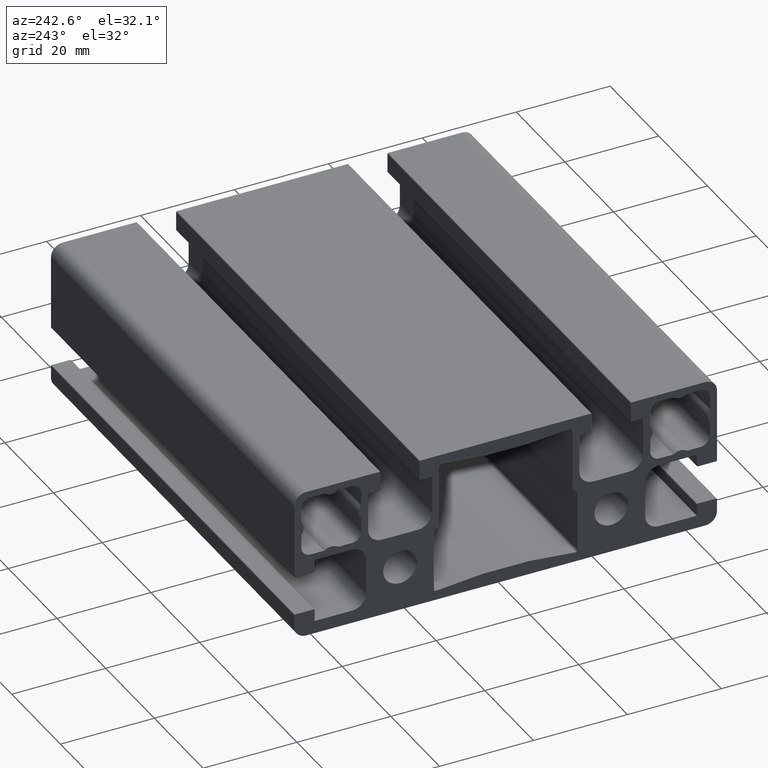
[diagram: clean part render]
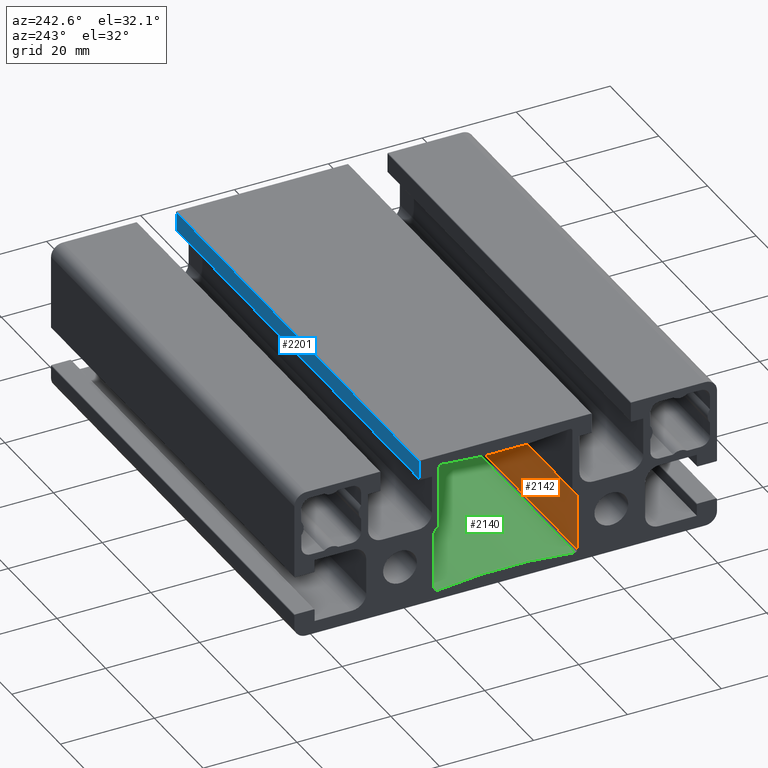
[diagram: same view with three faces highlighted in distinct colors, each labeled with its STEP entity id]
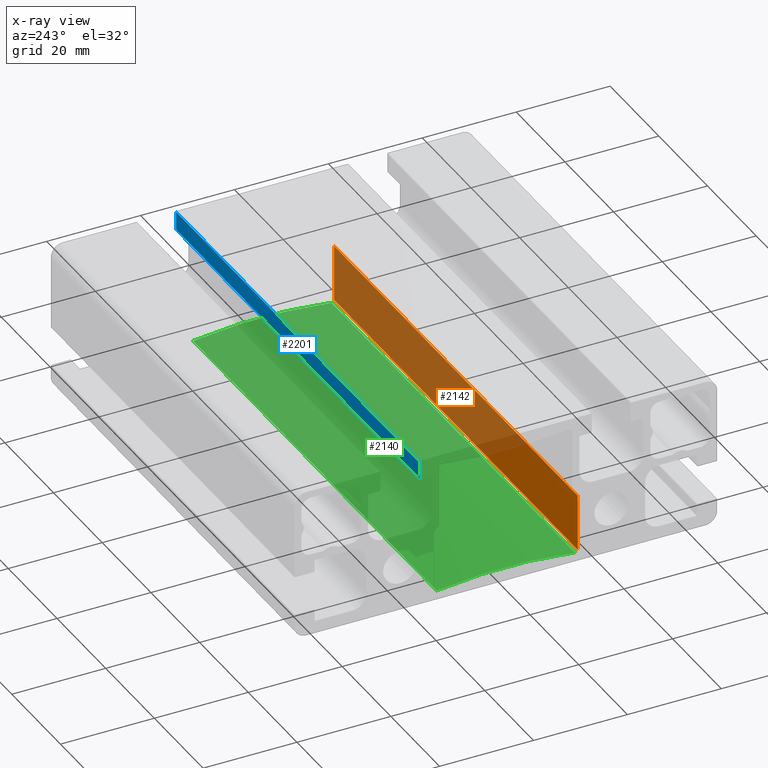
[diagram: x-ray of the same camera — body ghosted, the three highlighted faces saturated]
A machine part, auxiliary view with three faces highlighted in distinct colors.
The next image is the same camera in x-ray (body ghosted, the three faces saturated) — at least one of them is partly hidden behind the body in this view.
Their STEP definitions:

[orange] entity #2142 — the highlighted planar face has unit normal (0, -1, 0).
#27=PLANE('',#2288);
#92=FACE_OUTER_BOUND('',#204,.T.);
#204=EDGE_LOOP('',(#1455,#1456,#1457,#1458));
#438=LINE('',#3205,#660);
#439=LINE('',#3209,#661);
#440=LINE('',#3211,#662);
#441=LINE('',#3212,#663);
#660=VECTOR('',#2544,10.);
#661=VECTOR('',#2549,10.);
#662=VECTOR('',#2550,10.);
#663=VECTOR('',#2551,10.);
#887=VERTEX_POINT('',#3202);
#888=VERTEX_POINT('',#3204);
#889=VERTEX_POINT('',#3208);
#890=VERTEX_POINT('',#3210);
#1115=EDGE_CURVE('',#888,#887,#438,.T.);
#1117=EDGE_CURVE('',#889,#887,#439,.T.);
#1118=EDGE_CURVE('',#890,#889,#440,.T.);
#1119=EDGE_CURVE('',#888,#890,#441,.T.);
#1455=ORIENTED_EDGE('',*,*,#1115,.T.);
#1456=ORIENTED_EDGE('',*,*,#1117,.F.);
#1457=ORIENTED_EDGE('',*,*,#1118,.F.);
#1458=ORIENTED_EDGE('',*,*,#1119,.F.);
#2142=ADVANCED_FACE('',(#92),#27,.F.);
#2288=AXIS2_PLACEMENT_3D('',#3207,#2547,#2548);
#2544=DIRECTION('',(-1.,0.,0.));
#2547=DIRECTION('center_axis',(0.,-1.,3.69296948742028E-16));
#2548=DIRECTION('ref_axis',(0.,-3.69296948742028E-16,-1.));
#2549=DIRECTION('',(0.,-3.69296948742028E-16,-1.));
#2550=DIRECTION('',(-1.,0.,0.));
#2551=DIRECTION('',(0.,3.69296948742028E-16,1.));
#3202=CARTESIAN_POINT('',(-50.,-15.3,-13.511317848301));
#3204=CARTESIAN_POINT('',(50.,-15.3,-13.511317848301));
#3205=CARTESIAN_POINT('',(0.,-15.3,-13.511317848301));
#3207=CARTESIAN_POINT('Origin',(0.,-15.3,-1.48605710994918));
#3208=CARTESIAN_POINT('',(-50.,-15.3,-1.48605710994918));
#3209=CARTESIAN_POINT('',(-50.,-15.3,-0.878093131649248));
#3210=CARTESIAN_POINT('',(50.,-15.3,-1.48605710994918));
#3211=CARTESIAN_POINT('',(0.,-15.3,-1.48605710994918));
#3212=CARTESIAN_POINT('',(50.,-15.3,-0.878093131649248));

[blue] entity #2201 — the highlighted planar face has unit normal (0, 1, 0).
#57=PLANE('',#2423);
#151=FACE_OUTER_BOUND('',#268,.T.);
#268=EDGE_LOOP('',(#1797,#1798,#1799,#1800));
#523=LINE('',#3473,#745);
#579=LINE('',#3640,#801);
#580=LINE('',#3643,#802);
#581=LINE('',#3644,#803);
#745=VECTOR('',#2803,10.);
#801=VECTOR('',#2957,10.);
#802=VECTOR('',#2960,10.);
#803=VECTOR('',#2961,10.);
#983=VERTEX_POINT('',#3470);
#984=VERTEX_POINT('',#3472);
#1046=VERTEX_POINT('',#3638);
#1047=VERTEX_POINT('',#3642);
#1249=EDGE_CURVE('',#983,#984,#523,.T.);
#1333=EDGE_CURVE('',#1046,#983,#579,.T.);
#1334=EDGE_CURVE('',#1047,#1046,#580,.T.);
#1335=EDGE_CURVE('',#1047,#984,#581,.T.);
#1797=ORIENTED_EDGE('',*,*,#1333,.F.);
#1798=ORIENTED_EDGE('',*,*,#1334,.F.);
#1799=ORIENTED_EDGE('',*,*,#1335,.T.);
#1800=ORIENTED_EDGE('',*,*,#1249,.F.);
#2201=ADVANCED_FACE('',(#151),#57,.T.);
#2423=AXIS2_PLACEMENT_3D('',#3641,#2958,#2959);
#2803=DIRECTION('',(0.,0.,-1.));
#2957=DIRECTION('',(-1.,0.,0.));
#2958=DIRECTION('center_axis',(0.,1.,0.));
#2959=DIRECTION('ref_axis',(0.,0.,1.));
#2960=DIRECTION('',(0.,0.,1.));
#2961=DIRECTION('',(-1.,0.,0.));
#3470=CARTESIAN_POINT('',(-50.,18.35,15.8));
#3472=CARTESIAN_POINT('',(-50.,18.35,11.9));
#3473=CARTESIAN_POINT('',(-50.,18.35,15.8));
#3638=CARTESIAN_POINT('',(50.,18.35,15.8));
#3640=CARTESIAN_POINT('',(0.,18.35,15.8));
#3641=CARTESIAN_POINT('Origin',(0.,18.35,11.9));
#3642=CARTESIAN_POINT('',(50.,18.35,11.9));
#3643=CARTESIAN_POINT('',(50.,18.35,15.8));
#3644=CARTESIAN_POINT('',(0.,18.35,11.9));

[green] entity #2140 — the highlighted cylindrical surface (partial cylindrical patch) has radius 108.3 mm, axis along (1, 0, 0).
#90=FACE_OUTER_BOUND('',#202,.T.);
#202=EDGE_LOOP('',(#1447,#1448,#1449,#1450));
#327=CIRCLE('',#2283,108.3);
#328=CIRCLE('',#2284,108.3);
#436=LINE('',#3193,#658);
#437=LINE('',#3199,#659);
#658=VECTOR('',#2530,10.);
#659=VECTOR('',#2537,10.);
#883=VERTEX_POINT('',#3190);
#884=VERTEX_POINT('',#3192);
#885=VERTEX_POINT('',#3196);
#886=VERTEX_POINT('',#3198);
#1109=EDGE_CURVE('',#884,#883,#436,.T.);
#1111=EDGE_CURVE('',#885,#883,#327,.T.);
#1112=EDGE_CURVE('',#886,#885,#437,.T.);
#1113=EDGE_CURVE('',#884,#886,#328,.T.);
#1447=ORIENTED_EDGE('',*,*,#1109,.T.);
#1448=ORIENTED_EDGE('',*,*,#1111,.F.);
#1449=ORIENTED_EDGE('',*,*,#1112,.F.);
#1450=ORIENTED_EDGE('',*,*,#1113,.F.);
#2084=CYLINDRICAL_SURFACE('',#2282,108.3);
#2140=ADVANCED_FACE('',(#90),#2084,.T.);
#2282=AXIS2_PLACEMENT_3D('',#3195,#2533,#2534);
#2283=AXIS2_PLACEMENT_3D('',#3197,#2535,#2536);
#2284=AXIS2_PLACEMENT_3D('',#3200,#2538,#2539);
#2530=DIRECTION('',(-1.,0.,0.));
#2533=DIRECTION('center_axis',(1.,0.,0.));
#2534=DIRECTION('ref_axis',(0.,0.136029411764706,0.99070479918841));
#2535=DIRECTION('center_axis',(-1.,0.,0.));
#2536=DIRECTION('ref_axis',(0.,0.136029411764706,0.99070479918841));
#2537=DIRECTION('',(-1.,0.,0.));
#2538=DIRECTION('center_axis',(1.,0.,0.));
#2539=DIRECTION('ref_axis',(0.,0.136029411764706,0.99070479918841));
#3190=CARTESIAN_POINT('',(-50.,14.7319852941177,-14.0066702478952));
#3192=CARTESIAN_POINT('',(50.,14.7319852941177,-14.0066702478952));
#3193=CARTESIAN_POINT('',(0.,14.7319852941176,-14.0066702478952));
#3195=CARTESIAN_POINT('Origin',(0.,0.,-121.3));
#3196=CARTESIAN_POINT('',(-50.,-14.7319852941176,-14.0066702478952));
#3197=CARTESIAN_POINT('Origin',(-50.,0.,-121.3));
#3198=CARTESIAN_POINT('',(50.,-14.7319852941176,-14.0066702478952));
#3199=CARTESIAN_POINT('',(0.,-14.7319852941176,-14.0066702478952));
#3200=CARTESIAN_POINT('Origin',(50.,0.,-121.3));